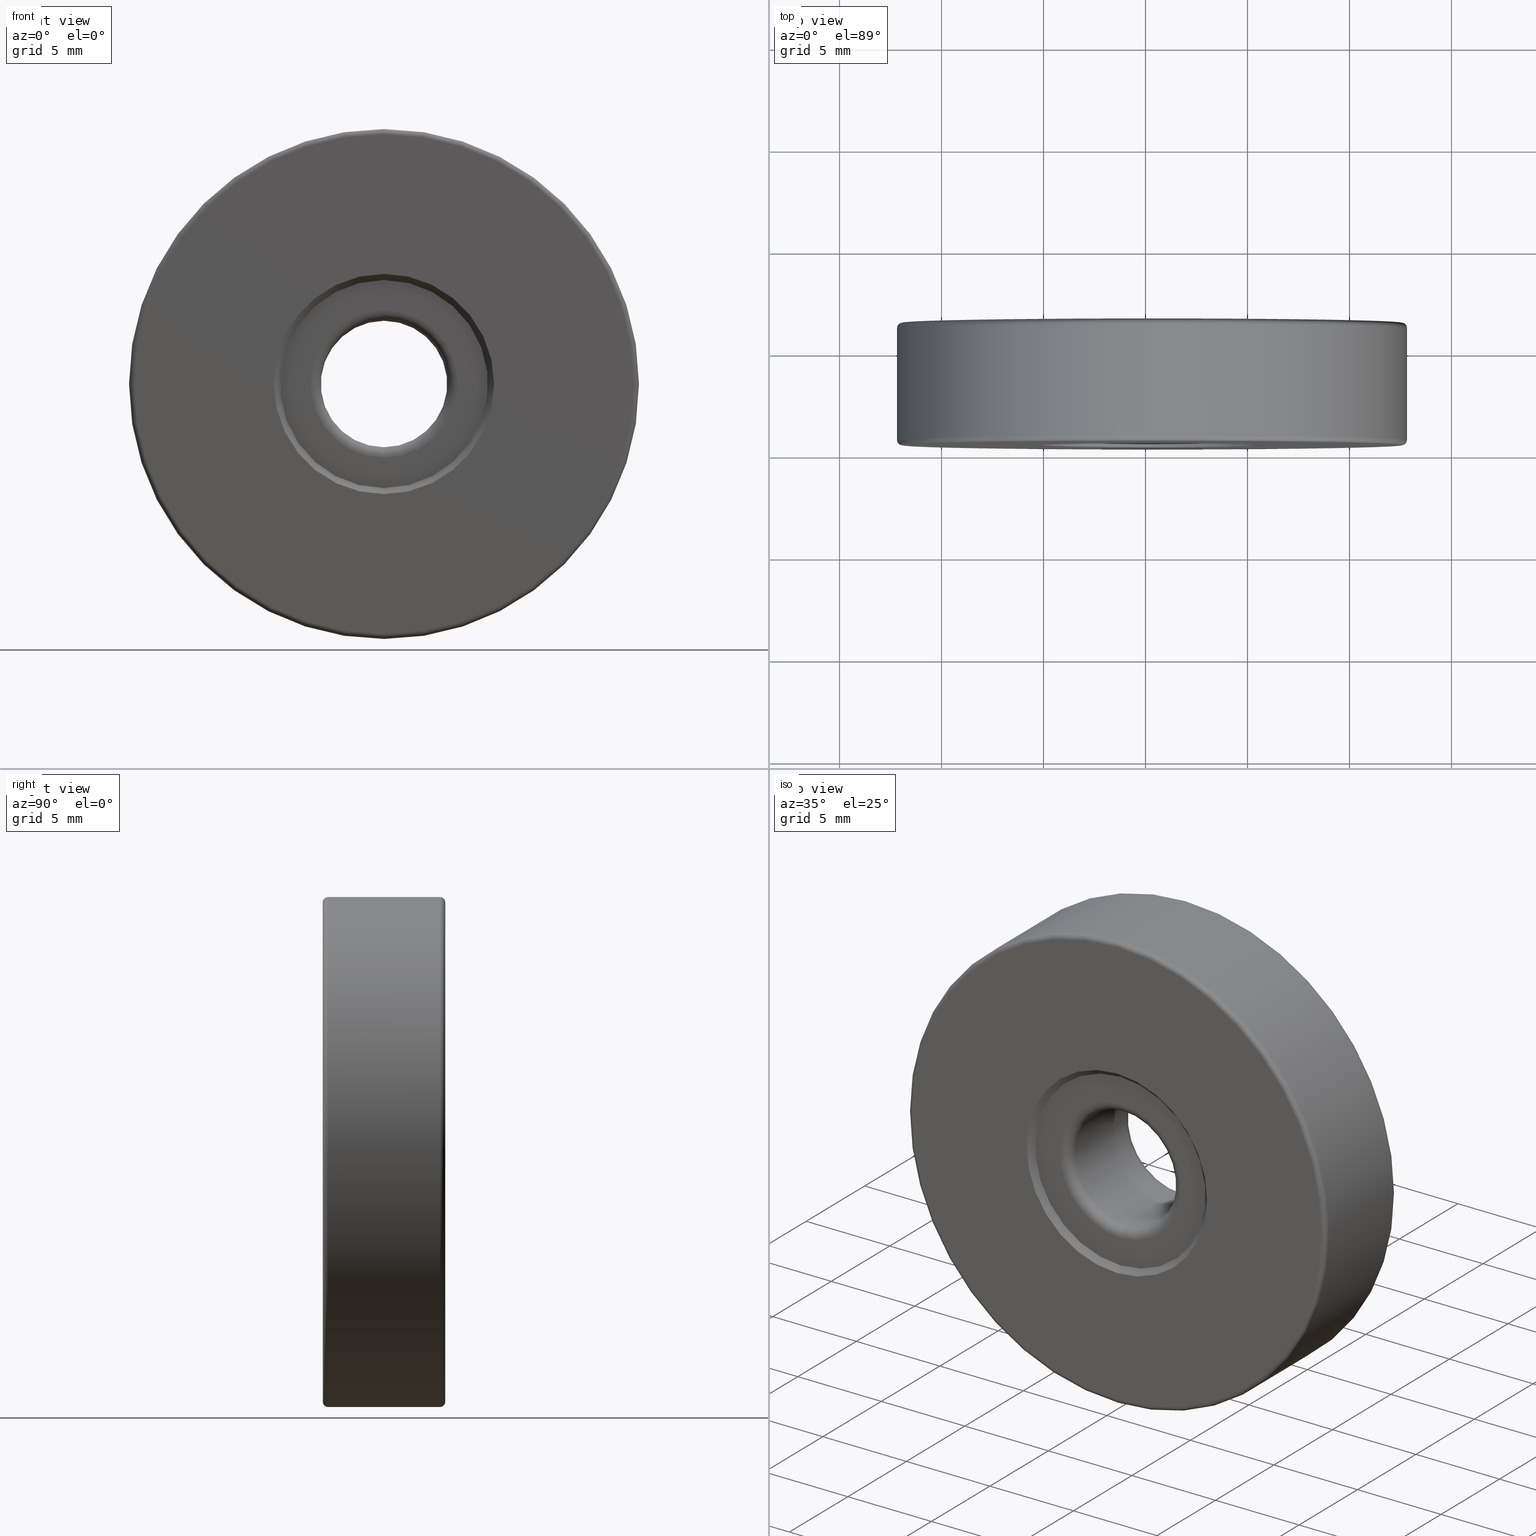
[diagram: canonical four-view strip — front | top / right | iso, engineering-drawing reading convention]
A machine part, canonical four-view strip (front | top / right | iso — engineering-drawing reading convention). The complete STEP part file that produces these views, byte-faithful:
ISO-10303-21;
HEADER;
FILE_DESCRIPTION (( 'STEP AP203' ),
    '1' );
FILE_NAME ('1.4.2.106_ZGH-25-DK6.STEP',
    '2022-04-15T03:00:36',
    ( '' ),
    ( '' ),
    'SwSTEP 2.0',
    'SolidWorks 2021',
    '' );
FILE_SCHEMA (( 'CONFIG_CONTROL_DESIGN' ));
ENDSEC;

DATA;
#1 = DIRECTION ( 'NONE',  ( 0.0000000000000000000, 1.000000000000000000, 0.0000000000000000000 ) ) ;
#2 = DIRECTION ( 'NONE',  ( -0.0000000000000000000, -1.000000000000000000, -0.0000000000000000000 ) ) ;
#3 = ADVANCED_FACE ( 'NONE', ( #86 ), #52, .T. ) ;
#4 = FACE_OUTER_BOUND ( 'NONE', #554, .T. ) ;
#5 = CIRCLE ( 'NONE', #537, 0.5000000000000004441 ) ;
#6 = CIRCLE ( 'NONE', #217, 0.2500000000000002220 ) ;
#7 = CARTESIAN_POINT ( 'NONE',  ( -4.682026255059964726, 1.105024023001728750, 25.00000000000000000 ) ) ;
#8 = DIRECTION ( 'NONE',  ( 0.0000000000000000000, 1.000000000000000000, 0.0000000000000000000 ) ) ;
#9 = DIRECTION ( 'NONE',  ( 8.659560562354895880E-17, -0.7071067811865506814, 0.7071067811865443531 ) ) ;
#10 = ORIENTED_EDGE ( 'NONE', *, *, #395, .F. ) ;
#11 = DIRECTION ( 'NONE',  ( -0.0000000000000000000, 1.000000000000000000, -0.0000000000000000000 ) ) ;
#12 = VERTEX_POINT ( 'NONE', #186 ) ;
#13 = DATE_AND_TIME ( #57, #340 ) ;
#14 = AXIS2_PLACEMENT_3D ( 'NONE', #481, #433, #151 ) ;
#15 = CARTESIAN_POINT ( 'NONE',  ( -4.682026255059964726, 1.105024023001728750, 25.00000000000000000 ) ) ;
#16 = EDGE_CURVE ( 'NONE', #273, #194, #245, .T. ) ;
#17 = APPLICATION_PROTOCOL_DEFINITION ( 'international standard', 'config_control_design', 1994, #251 ) ;
#18 = DIRECTION ( 'NONE',  ( 0.0000000000000000000, 1.000000000000000000, 0.0000000000000000000 ) ) ;
#19 = ORIENTED_EDGE ( 'NONE', *, *, #517, .T. ) ;
#20 = DIRECTION ( 'NONE',  ( -0.0000000000000000000, -1.000000000000000000, -0.0000000000000000000 ) ) ;
#21 = VERTEX_POINT ( 'NONE', #479 ) ;
#22 = DIRECTION ( 'NONE',  ( -0.0000000000000000000, -1.000000000000000000, -0.0000000000000000000 ) ) ;
#23 = CIRCLE ( 'NONE', #396, 12.50000000000000355 ) ;
#24 = VERTEX_POINT ( 'NONE', #240 ) ;
#25 = APPROVAL_PERSON_ORGANIZATION ( #466, #515, #599 ) ;
#26 = PERSON_AND_ORGANIZATION ( #73, #322 ) ;
#27 = FACE_OUTER_BOUND ( 'NONE', #504, .T. ) ;
#28 = ORIENTED_EDGE ( 'NONE', *, *, #333, .T. ) ;
#29 = CARTESIAN_POINT ( 'NONE',  ( -4.682026255059964726, 0.6050240230017248644, 25.00000000000000000 ) ) ;
#30 = EDGE_CURVE ( 'NONE', #267, #12, #42, .T. ) ;
#31 = ORIENTED_EDGE ( 'NONE', *, *, #614, .F. ) ;
#32 = DATE_AND_TIME ( #421, #290 ) ;
#33 = ORIENTED_EDGE ( 'NONE', *, *, #92, .T. ) ;
#34 = VECTOR ( 'NONE', #105, 1000.000000000000000 ) ;
#35 = CC_DESIGN_PERSON_AND_ORGANIZATION_ASSIGNMENT ( #124, #215, ( #403 ) ) ;
#36 = AXIS2_PLACEMENT_3D ( 'NONE', #60, #154, #116 ) ;
#37 = DIRECTION ( 'NONE',  ( 0.0000000000000000000, 1.000000000000000000, 0.0000000000000000000 ) ) ;
#38 = ORIENTED_EDGE ( 'NONE', *, *, #614, .T. ) ;
#39 = DIRECTION ( 'NONE',  ( -0.0000000000000000000, 1.000000000000000000, -0.0000000000000000000 ) ) ;
#40 = EDGE_CURVE ( 'NONE', #392, #603, #432, .T. ) ;
#41 = VERTEX_POINT ( 'NONE', #428 ) ;
#42 = CIRCLE ( 'NONE', #279, 12.50000000000000355 ) ;
#43 = AXIS2_PLACEMENT_3D ( 'NONE', #221, #362, #331 ) ;
#44 = LOCAL_TIME ( 11, 0, 36.00000000000000000, #548 ) ;
#45 = CARTESIAN_POINT ( 'NONE',  ( -4.682026255059964726, -4.594975976998274980, 25.00000000000000000 ) ) ;
#46 = ORIENTED_EDGE ( 'NONE', *, *, #30, .F. ) ;
#47 = CYLINDRICAL_SURFACE ( 'NONE', #88, 3.099999999999998757 ) ;
#48 = EDGE_CURVE ( 'NONE', #603, #392, #508, .T. ) ;
#49 = DIRECTION ( 'NONE',  ( 0.0000000000000000000, 0.0000000000000000000, -1.000000000000000000 ) ) ;
#50 = LINE ( 'NONE', #399, #229 ) ;
#51 = CARTESIAN_POINT ( 'NONE',  ( -4.682026255059962949, -4.294975976998275158, 28.60000000000000142 ) ) ;
#52 = TOROIDAL_SURFACE ( 'NONE', #328, 12.25000000000000000, 0.2500000000000000000 ) ;
#53 = CIRCLE ( 'NONE', #425, 5.399999999999998579 ) ;
#54 = CARTESIAN_POINT ( 'NONE',  ( -4.682026255059964726, -3.794975976998274714, 25.00000000000000000 ) ) ;
#55 = FACE_OUTER_BOUND ( 'NONE', #299, .T. ) ;
#56 = ORIENTED_EDGE ( 'NONE', *, *, #134, .F. ) ;
#57 = CALENDAR_DATE ( 2022, 15, 4 ) ;
#58 = ADVANCED_FACE ( 'NONE', ( #330 ), #166, .T. ) ;
#59 = PLANE ( 'NONE',  #570 ) ;
#60 = CARTESIAN_POINT ( 'NONE',  ( -4.682026255059964726, -3.794975976998274714, 21.40000000000000213 ) ) ;
#61 = CIRCLE ( 'NONE', #216, 3.599999999999999201 ) ;
#62 = AXIS2_PLACEMENT_3D ( 'NONE', #582, #148, #296 ) ;
#63 = CC_DESIGN_DATE_AND_TIME_ASSIGNMENT ( #32, #136, ( #512 ) ) ;
#64 = DIRECTION ( 'NONE',  ( 0.0000000000000000000, 0.0000000000000000000, -1.000000000000000000 ) ) ;
#65 = CC_DESIGN_APPROVAL ( #515, ( #512 ) ) ;
#66 = ORIENTED_EDGE ( 'NONE', *, *, #226, .F. ) ;
#67 = DIRECTION ( 'NONE',  ( 1.000000000000000000, 0.0000000000000000000, 0.0000000000000000000 ) ) ;
#68 = CARTESIAN_POINT ( 'NONE',  ( -4.682026255059963837, 1.105024023001728750, 19.90000000000000213 ) ) ;
#69 = VERTEX_POINT ( 'NONE', #617 ) ;
#70 = ADVANCED_FACE ( 'NONE', ( #431 ), #309, .T. ) ;
#71 = FACE_OUTER_BOUND ( 'NONE', #144, .T. ) ;
#72 = DIRECTION ( 'NONE',  ( 0.0000000000000000000, 1.000000000000000000, 0.0000000000000000000 ) ) ;
#73 = PERSON ( 'δָ��', 'δָ��', 'δָ��', ('δָ��'), ('δָ��'), ('δָ��') ) ;
#74 = ORIENTED_EDGE ( 'NONE', *, *, #558, .T. ) ;
#75 = DATE_AND_TIME ( #458, #408 ) ;
#76 = AXIS2_PLACEMENT_3D ( 'NONE', #15, #553, #218 ) ;
#77 = DIRECTION ( 'NONE',  ( 0.0000000000000000000, 0.0000000000000000000, 1.000000000000000000 ) ) ;
#78 = CIRCLE ( 'NONE', #563, 0.5000000000000004441 ) ;
#79 = CIRCLE ( 'NONE', #329, 3.099999999999998757 ) ;
#80 = ORIENTED_EDGE ( 'NONE', *, *, #48, .T. ) ;
#81 = DIRECTION ( 'NONE',  ( 0.0000000000000000000, 0.0000000000000000000, 1.000000000000000000 ) ) ;
#82 = ORIENTED_EDGE ( 'NONE', *, *, #333, .F. ) ;
#83 = APPROVAL_STATUS ( 'not_yet_approved' ) ;
#84 = EDGE_CURVE ( 'NONE', #397, #115, #455, .T. ) ;
#85 = ORIENTED_EDGE ( 'NONE', *, *, #84, .F. ) ;
#86 = FACE_OUTER_BOUND ( 'NONE', #535, .T. ) ;
#87 = AXIS2_PLACEMENT_3D ( 'NONE', #569, #469, #137 ) ;
#88 = AXIS2_PLACEMENT_3D ( 'NONE', #578, #241, #430 ) ;
#89 = PERSON_AND_ORGANIZATION_ROLE ( 'creator' ) ;
#90 = PRODUCT_DEFINITION_FORMATION_WITH_SPECIFIED_SOURCE ( '�κ�', '', #403, .NOT_KNOWN. ) ;
#91 = EDGE_LOOP ( 'NONE', ( #153, #320, #74, #565 ) ) ;
#92 = EDGE_CURVE ( 'NONE', #111, #267, #50, .T. ) ;
#93 = FACE_OUTER_BOUND ( 'NONE', #203, .T. ) ;
#94 = CARTESIAN_POINT ( 'NONE',  ( -4.682026255059964726, -4.594975976998274980, 25.00000000000000000 ) ) ;
#95 = CIRCLE ( 'NONE', #442, 0.2500000000000002220 ) ;
#96 = AXIS2_PLACEMENT_3D ( 'NONE', #101, #389, #143 ) ;
#97 = APPROVAL_PERSON_ORGANIZATION ( #417, #540, #228 ) ;
#98 = LINE ( 'NONE', #613, #580 ) ;
#99 = ADVANCED_FACE ( 'NONE', ( #435, #343 ), #59, .T. ) ;
#100 = ORIENTED_EDGE ( 'NONE', *, *, #522, .F. ) ;
#101 = CARTESIAN_POINT ( 'NONE',  ( -4.682026255059963837, -3.794975976998274714, 28.60000000000000142 ) ) ;
#102 = CC_DESIGN_PERSON_AND_ORGANIZATION_ASSIGNMENT ( #26, #183, ( #512 ) ) ;
#103 = CARTESIAN_POINT ( 'NONE',  ( -4.682026255059964726, 1.405024023001725242, 37.25000000000000711 ) ) ;
#104 = DIRECTION ( 'NONE',  ( -0.0000000000000000000, 1.000000000000000000, -0.0000000000000000000 ) ) ;
#105 = DIRECTION ( 'NONE',  ( 0.0000000000000000000, 0.7071067811865444641, 0.7071067811865505703 ) ) ;
#106 = ORIENTED_EDGE ( 'NONE', *, *, #226, .T. ) ;
#107 = DIRECTION ( 'NONE',  ( 0.0000000000000000000, -1.000000000000000000, 0.0000000000000000000 ) ) ;
#108 = VECTOR ( 'NONE', #9, 1000.000000000000114 ) ;
#109 = CIRCLE ( 'NONE', #43, 5.100000000000000533 ) ;
#110 = DIRECTION ( 'NONE',  ( 0.0000000000000000000, -0.0000000000000000000, 1.000000000000000000 ) ) ;
#111 = VERTEX_POINT ( 'NONE', #393 ) ;
#112 = EDGE_CURVE ( 'NONE', #338, #552, #61, .T. ) ;
#113 = CALENDAR_DATE ( 2022, 15, 4 ) ;
#114 = DIRECTION ( 'NONE',  ( 0.0000000000000000000, 0.0000000000000000000, 1.000000000000000000 ) ) ;
#115 = VERTEX_POINT ( 'NONE', #103 ) ;
#116 = DIRECTION ( 'NONE',  ( 0.0000000000000000000, 0.0000000000000000000, 1.000000000000000000 ) ) ;
#117 = CARTESIAN_POINT ( 'NONE',  ( -4.682026255059964726, -3.794975976998274714, 25.00000000000000000 ) ) ;
#118 = EDGE_LOOP ( 'NONE', ( #422, #561 ) ) ;
#119 = CARTESIAN_POINT ( 'NONE',  ( -4.682026255059964726, -4.594975976998274980, 19.60000000000000142 ) ) ;
#120 = VECTOR ( 'NONE', #39, 1000.000000000000000 ) ;
#121 = DIRECTION ( 'NONE',  ( -0.0000000000000000000, -1.000000000000000000, -0.0000000000000000000 ) ) ;
#122 = EDGE_CURVE ( 'NONE', #392, #267, #604, .T. ) ;
#123 = EDGE_LOOP ( 'NONE', ( #358, #420, #38, #46 ) ) ;
#124 = PERSON_AND_ORGANIZATION ( #73, #322 ) ;
#125 = DIRECTION ( 'NONE',  ( -0.0000000000000000000, -1.000000000000000000, -0.0000000000000000000 ) ) ;
#126 = ORIENTED_EDGE ( 'NONE', *, *, #401, .T. ) ;
#127 = DIRECTION ( 'NONE',  ( 0.0000000000000000000, 0.0000000000000000000, -1.000000000000000000 ) ) ;
#128 = DIRECTION ( 'NONE',  ( 0.0000000000000000000, 0.0000000000000000000, 1.000000000000000000 ) ) ;
#129 = EDGE_LOOP ( 'NONE', ( #568, #265 ) ) ;
#130 = VECTOR ( 'NONE', #542, 1000.000000000000000 ) ;
#131 = CARTESIAN_POINT ( 'NONE',  ( -4.682026255059964726, 1.155024023001725020, 37.25000000000000711 ) ) ;
#132 = AXIS2_PLACEMENT_3D ( 'NONE', #369, #377, #560 ) ;
#133 = ORIENTED_EDGE ( 'NONE', *, *, #277, .T. ) ;
#134 = EDGE_CURVE ( 'NONE', #404, #324, #354, .T. ) ;
#135 = ORIENTED_EDGE ( 'NONE', *, *, #40, .F. ) ;
#136 = DATE_TIME_ROLE ( 'classification_date' ) ;
#137 = DIRECTION ( 'NONE',  ( 0.0000000000000000000, 0.0000000000000000000, 1.000000000000000000 ) ) ;
#138 = TOROIDAL_SURFACE ( 'NONE', #520, 3.600000000000000089, 0.5000000000000000000 ) ;
#139 = AXIS2_PLACEMENT_3D ( 'NONE', #383, #104, #243 ) ;
#140 = CARTESIAN_POINT ( 'NONE',  ( -4.682026255059964726, 1.405024023001725242, 25.00000000000000000 ) ) ;
#141 = EDGE_LOOP ( 'NONE', ( #413, #457, #516, #426 ) ) ;
#142 = DIRECTION ( 'NONE',  ( -0.0000000000000000000, -1.000000000000000000, -0.0000000000000000000 ) ) ;
#143 = DIRECTION ( 'NONE',  ( 0.0000000000000000000, 0.0000000000000000000, -1.000000000000000000 ) ) ;
#144 = EDGE_LOOP ( 'NONE', ( #160, #100 ) ) ;
#145 = AXIS2_PLACEMENT_3D ( 'NONE', #252, #212, #359 ) ;
#146 = DIRECTION ( 'NONE',  ( 0.0000000000000000000, -0.0000000000000000000, 1.000000000000000000 ) ) ;
#147 = CARTESIAN_POINT ( 'NONE',  ( -4.682026255059964726, 1.105024023001725419, 25.00000000000000000 ) ) ;
#148 = DIRECTION ( 'NONE',  ( 0.0000000000000000000, 1.000000000000000000, 0.0000000000000000000 ) ) ;
#149 = DIRECTION ( 'NONE',  ( 1.000000000000000000, -0.0000000000000000000, 1.224646799147353207E-16 ) ) ;
#150 = DIRECTION ( 'NONE',  ( 0.0000000000000000000, 0.0000000000000000000, 1.000000000000000000 ) ) ;
#151 = DIRECTION ( 'NONE',  ( 0.0000000000000000000, 0.0000000000000000000, 1.000000000000000000 ) ) ;
#152 = ADVANCED_FACE ( 'NONE', ( #546 ), #387, .T. ) ;
#153 = ORIENTED_EDGE ( 'NONE', *, *, #385, .T. ) ;
#154 = DIRECTION ( 'NONE',  ( -1.000000000000000000, -0.0000000000000000000, -0.0000000000000000000 ) ) ;
#155 = AXIS2_PLACEMENT_3D ( 'NONE', #585, #142, #188 ) ;
#156 = DIRECTION ( 'NONE',  ( 0.0000000000000000000, 0.0000000000000000000, -1.000000000000000000 ) ) ;
#157 = ADVANCED_FACE ( 'NONE', ( #348 ), #351, .F. ) ;
#158 = CARTESIAN_POINT ( 'NONE',  ( -4.682026255059964726, -4.344975976998274980, 25.00000000000000000 ) ) ;
#159 = CARTESIAN_POINT ( 'NONE',  ( -4.682026255059964726, -4.294975976998275158, 25.00000000000000000 ) ) ;
#160 = ORIENTED_EDGE ( 'NONE', *, *, #352, .F. ) ;
#161 = CARTESIAN_POINT ( 'NONE',  ( -4.682026255059964726, -4.594975976998274980, 37.25000000000000711 ) ) ;
#162 = EDGE_CURVE ( 'NONE', #278, #608, #298, .T. ) ;
#163 = DIRECTION ( 'NONE',  ( 1.000000000000000000, -0.0000000000000000000, 1.224646799147353207E-16 ) ) ;
#164 = EDGE_LOOP ( 'NONE', ( #584, #19, #609, #316 ) ) ;
#165 = DIRECTION ( 'NONE',  ( 0.0000000000000000000, 0.0000000000000000000, 1.000000000000000000 ) ) ;
#166 = TOROIDAL_SURFACE ( 'NONE', #405, 3.600000000000000089, 0.5000000000000000000 ) ;
#167 = PRODUCT_RELATED_PRODUCT_CATEGORY ( 'detail', '', ( #403 ) ) ;
#168 = AXIS2_PLACEMENT_3D ( 'NONE', #190, #533, #480 ) ;
#169 = CYLINDRICAL_SURFACE ( 'NONE', #551, 12.50000000000000000 ) ;
#170 = ORIENTED_EDGE ( 'NONE', *, *, #522, .T. ) ;
#171 = DATE_AND_TIME ( #113, #44 ) ;
#172 = CARTESIAN_POINT ( 'NONE',  ( -4.682026255059963837, -4.594975976998274980, 30.39999999999999858 ) ) ;
#173 = ORIENTED_EDGE ( 'NONE', *, *, #162, .T. ) ;
#174 = SECURITY_CLASSIFICATION_LEVEL ( 'unclassified' ) ;
#175 = DIRECTION ( 'NONE',  ( 0.0000000000000000000, 0.0000000000000000000, 1.000000000000000000 ) ) ;
#176 = ORIENTED_EDGE ( 'NONE', *, *, #16, .T. ) ;
#177 = EDGE_CURVE ( 'NONE', #69, #367, #594, .T. ) ;
#178 = AXIS2_PLACEMENT_3D ( 'NONE', #581, #250, #586 ) ;
#179 = ORIENTED_EDGE ( 'NONE', *, *, #162, .F. ) ;
#180 = SHELL_BASED_SURFACE_MODEL ( 'NONE', ( #418 ) );
#181 = PRODUCT_DEFINITION ( 'δ֪', '', #90, #419 ) ;
#182 = EDGE_LOOP ( 'NONE', ( #223, #133, #10, #471 ) ) ;
#183 = PERSON_AND_ORGANIZATION_ROLE ( 'classification_officer' ) ;
#184 = DIRECTION ( 'NONE',  ( 0.0000000000000000000, 0.0000000000000000000, 1.000000000000000000 ) ) ;
#185 = ADVANCED_FACE ( 'NONE', ( #261 ), #187, .F. ) ;
#186 = CARTESIAN_POINT ( 'NONE',  ( -4.682026255059962949, -4.344975976998274980, 37.50000000000000711 ) ) ;
#187 = CONICAL_SURFACE ( 'NONE', #394, 5.100000000000000533, 0.7853981633974526089 ) ;
#188 = DIRECTION ( 'NONE',  ( 0.0000000000000000000, 0.0000000000000000000, -1.000000000000000000 ) ) ;
#189 = DIRECTION ( 'NONE',  ( 0.0000000000000000000, 0.0000000000000000000, 1.000000000000000000 ) ) ;
#190 = CARTESIAN_POINT ( 'NONE',  ( -4.682026255059964726, -4.294975976998275158, 25.00000000000000000 ) ) ;
#191 = UNCERTAINTY_MEASURE_WITH_UNIT (LENGTH_MEASURE( 1.000000000000000082E-05 ), #452, 'distance_accuracy_value', 'NONE');
#192 = EDGE_CURVE ( 'NONE', #194, #278, #207, .T. ) ;
#193 = CARTESIAN_POINT ( 'NONE',  ( -4.682026255059962949, 1.405024023001725242, 37.50000000000000711 ) ) ;
#194 = VERTEX_POINT ( 'NONE', #302 ) ;
#195 = AXIS2_PLACEMENT_3D ( 'NONE', #54, #202, #156 ) ;
#196 = AXIS2_PLACEMENT_3D ( 'NONE', #285, #293, #150 ) ;
#197 = CC_DESIGN_DATE_AND_TIME_ASSIGNMENT ( #13, #205, ( #181 ) ) ;
#198 = FACE_BOUND ( 'NONE', #374, .T. ) ;
#199 = DIRECTION ( 'NONE',  ( 0.0000000000000000000, 1.000000000000000000, 0.0000000000000000000 ) ) ;
#200 = DIRECTION ( 'NONE',  ( 0.0000000000000000000, 0.0000000000000000000, 1.000000000000000000 ) ) ;
#201 = DIRECTION ( 'NONE',  ( 0.0000000000000000000, 1.000000000000000000, 0.0000000000000000000 ) ) ;
#202 = DIRECTION ( 'NONE',  ( 0.0000000000000000000, -1.000000000000000000, 0.0000000000000000000 ) ) ;
#203 = EDGE_LOOP ( 'NONE', ( #56, #170, #327, #465 ) ) ;
#204 = CIRCLE ( 'NONE', #562, 12.25000000000000355 ) ;
#205 = DATE_TIME_ROLE ( 'creation_date' ) ;
#206 = CONICAL_SURFACE ( 'NONE', #155, 5.399999999999998579, 0.7853981633974439491 ) ;
#207 = LINE ( 'NONE', #538, #130 ) ;
#208 = ADVANCED_FACE ( 'NONE', ( #55 ), #138, .T. ) ;
#209 = PERSON_AND_ORGANIZATION ( #73, #322 ) ;
#210 = DIRECTION ( 'NONE',  ( 0.0000000000000000000, 0.0000000000000000000, 1.000000000000000000 ) ) ;
#211 = CC_DESIGN_PERSON_AND_ORGANIZATION_ASSIGNMENT ( #566, #89, ( #90 ) ) ;
#212 = DIRECTION ( 'NONE',  ( 0.0000000000000000000, -1.000000000000000000, 0.0000000000000000000 ) ) ;
#213 = FACE_OUTER_BOUND ( 'NONE', #227, .T. ) ;
#214 = ORIENTED_EDGE ( 'NONE', *, *, #295, .F. ) ;
#215 = PERSON_AND_ORGANIZATION_ROLE ( 'design_owner' ) ;
#216 = AXIS2_PLACEMENT_3D ( 'NONE', #159, #11, #589 ) ;
#217 = AXIS2_PLACEMENT_3D ( 'NONE', #398, #314, #127 ) ;
#218 = DIRECTION ( 'NONE',  ( 0.0000000000000000000, 0.0000000000000000000, 1.000000000000000000 ) ) ;
#219 = LOCAL_TIME ( 11, 0, 36.00000000000000000, #368 ) ;
#220 = ORIENTED_EDGE ( 'NONE', *, *, #295, .T. ) ;
#221 = CARTESIAN_POINT ( 'NONE',  ( -4.682026255059964726, -4.294975976998275158, 25.00000000000000000 ) ) ;
#222 = EDGE_CURVE ( 'NONE', #530, #444, #612, .T. ) ;
#223 = ORIENTED_EDGE ( 'NONE', *, *, #222, .F. ) ;
#224 = DATE_AND_TIME ( #505, #219 ) ;
#225 = DIRECTION ( 'NONE',  ( 0.0000000000000000000, 1.000000000000000000, 0.0000000000000000000 ) ) ;
#226 = EDGE_CURVE ( 'NONE', #69, #24, #345, .T. ) ;
#227 = EDGE_LOOP ( 'NONE', ( #410, #494, #590, #214 ) ) ;
#228 = APPROVAL_ROLE ( '' ) ;
#229 = VECTOR ( 'NONE', #491, 1000.000000000000000 ) ;
#230 = CIRCLE ( 'NONE', #139, 5.100000000000000533 ) ;
#231 = ORIENTED_EDGE ( 'NONE', *, *, #363, .T. ) ;
#232 = ADVANCED_FACE ( 'NONE', ( #256 ), #372, .F. ) ;
#233 = ORIENTED_EDGE ( 'NONE', *, *, #448, .F. ) ;
#234 = DIRECTION ( 'NONE',  ( 0.0000000000000000000, 1.000000000000000000, 0.0000000000000000000 ) ) ;
#235 = AXIS2_PLACEMENT_3D ( 'NONE', #294, #149, #64 ) ;
#236 = ORIENTED_EDGE ( 'NONE', *, *, #192, .T. ) ;
#237 = TOROIDAL_SURFACE ( 'NONE', #487, 12.25000000000000000, 0.2500000000000000000 ) ;
#238 = FACE_OUTER_BOUND ( 'NONE', #375, .T. ) ;
#239 = ADVANCED_FACE ( 'NONE', ( #93 ), #337, .F. ) ;
#240 = CARTESIAN_POINT ( 'NONE',  ( -4.682026255059964726, 1.405024023001725242, 30.39999999999999858 ) ) ;
#241 = DIRECTION ( 'NONE',  ( -0.0000000000000000000, 1.000000000000000000, -0.0000000000000000000 ) ) ;
#242 = DIRECTION ( 'NONE',  ( 0.0000000000000000000, 0.0000000000000000000, 1.000000000000000000 ) ) ;
#243 = DIRECTION ( 'NONE',  ( 0.0000000000000000000, 0.0000000000000000000, 1.000000000000000000 ) ) ;
#244 = CARTESIAN_POINT ( 'NONE',  ( -4.682026255059963837, -4.594975976998274980, 30.39999999999999858 ) ) ;
#245 = CIRCLE ( 'NONE', #579, 3.099999999999998757 ) ;
#246 = ORIENTED_EDGE ( 'NONE', *, *, #40, .T. ) ;
#247 = AXIS2_PLACEMENT_3D ( 'NONE', #472, #225, #128 ) ;
#248 = EDGE_CURVE ( 'NONE', #24, #41, #467, .T. ) ;
#249 = CARTESIAN_POINT ( 'NONE',  ( -4.682026255059964726, 1.155024023001725020, 25.00000000000000000 ) ) ;
#250 = DIRECTION ( 'NONE',  ( 0.0000000000000000000, 1.000000000000000000, 0.0000000000000000000 ) ) ;
#251 = APPLICATION_CONTEXT ( 'configuration controlled 3d designs of mechanical parts and assemblies' ) ;
#252 = CARTESIAN_POINT ( 'NONE',  ( -4.682026255059964726, -4.294975976998275158, 25.00000000000000000 ) ) ;
#253 = DIRECTION ( 'NONE',  ( 0.0000000000000000000, 0.0000000000000000000, 1.000000000000000000 ) ) ;
#254 = ORIENTED_EDGE ( 'NONE', *, *, #567, .T. ) ;
#255 = APPROVAL_DATE_TIME ( #171, #464 ) ;
#256 = FACE_OUTER_BOUND ( 'NONE', #346, .T. ) ;
#257 = ORIENTED_EDGE ( 'NONE', *, *, #395, .T. ) ;
#258 =( NAMED_UNIT ( * ) SI_UNIT ( $, .STERADIAN. ) SOLID_ANGLE_UNIT ( ) );
#259 = CIRCLE ( 'NONE', #424, 0.2500000000000002220 ) ;
#260 = CC_DESIGN_SECURITY_CLASSIFICATION ( #512, ( #90 ) ) ;
#261 = FACE_OUTER_BOUND ( 'NONE', #415, .T. ) ;
#262 = CC_DESIGN_PERSON_AND_ORGANIZATION_ASSIGNMENT ( #411, #268, ( #90 ) ) ;
#263 = DIRECTION ( 'NONE',  ( 0.0000000000000000000, 0.0000000000000000000, 1.000000000000000000 ) ) ;
#264 = DIRECTION ( 'NONE',  ( 0.0000000000000000000, 0.0000000000000000000, 1.000000000000000000 ) ) ;
#265 = ORIENTED_EDGE ( 'NONE', *, *, #489, .T. ) ;
#266 = CARTESIAN_POINT ( 'NONE',  ( -4.682026255059964726, 1.155024023001725020, 25.00000000000000000 ) ) ;
#267 = VERTEX_POINT ( 'NONE', #409 ) ;
#268 = PERSON_AND_ORGANIZATION_ROLE ( 'design_supplier' ) ;
#269 = EDGE_CURVE ( 'NONE', #324, #573, #378, .T. ) ;
#270 = VECTOR ( 'NONE', #503, 1000.000000000000000 ) ;
#271 = TOROIDAL_SURFACE ( 'NONE', #247, 12.25000000000000000, 0.2500000000000000000 ) ;
#272 = CARTESIAN_POINT ( 'NONE',  ( -4.682026255059964726, -4.294975976998275158, 21.40000000000000213 ) ) ;
#273 = VERTEX_POINT ( 'NONE', #593 ) ;
#274 = CARTESIAN_POINT ( 'NONE',  ( -4.682026255059962949, -4.594975976998274980, 12.75000000000000178 ) ) ;
#275 = ORIENTED_EDGE ( 'NONE', *, *, #511, .T. ) ;
#276 = APPROVAL_DATE_TIME ( #75, #540 ) ;
#277 = EDGE_CURVE ( 'NONE', #530, #278, #5, .T. ) ;
#278 = VERTEX_POINT ( 'NONE', #500 ) ;
#279 = AXIS2_PLACEMENT_3D ( 'NONE', #281, #476, #473 ) ;
#280 = AXIS2_PLACEMENT_3D ( 'NONE', #434, #8, #390 ) ;
#281 = CARTESIAN_POINT ( 'NONE',  ( -4.682026255059964726, -4.344975976998274980, 25.00000000000000000 ) ) ;
#282 = CARTESIAN_POINT ( 'NONE',  ( -4.682026255059964726, 0.6050240230017248644, 25.00000000000000000 ) ) ;
#283 = CARTESIAN_POINT ( 'NONE',  ( -4.682026255059964726, -4.594975976998274980, 28.10000000000000142 ) ) ;
#284 = ORIENTED_EDGE ( 'NONE', *, *, #478, .T. ) ;
#285 = CARTESIAN_POINT ( 'NONE',  ( -4.682026255059964726, 1.105024023001725419, 25.00000000000000000 ) ) ;
#286 = EDGE_CURVE ( 'NONE', #367, #41, #312, .T. ) ;
#287 = AXIS2_PLACEMENT_3D ( 'NONE', #453, #125, #597 ) ;
#288 = ORIENTED_EDGE ( 'NONE', *, *, #478, .F. ) ;
#289 = AXIS2_PLACEMENT_3D ( 'NONE', #506, #20, #175 ) ;
#290 = LOCAL_TIME ( 11, 0, 36.00000000000000000, #606 ) ;
#291 = DIRECTION ( 'NONE',  ( -0.0000000000000000000, -1.000000000000000000, -0.0000000000000000000 ) ) ;
#292 = EDGE_CURVE ( 'NONE', #115, #397, #204, .T. ) ;
#293 = DIRECTION ( 'NONE',  ( 0.0000000000000000000, 1.000000000000000000, 0.0000000000000000000 ) ) ;
#294 = CARTESIAN_POINT ( 'NONE',  ( -4.682026255059962949, -4.344975976998274980, 12.75000000000000178 ) ) ;
#295 = EDGE_CURVE ( 'NONE', #21, #115, #95, .T. ) ;
#296 = DIRECTION ( 'NONE',  ( 0.0000000000000000000, -0.0000000000000000000, 1.000000000000000000 ) ) ;
#297 = DIRECTION ( 'NONE',  ( 0.0000000000000000000, -1.000000000000000000, 0.0000000000000000000 ) ) ;
#298 = CIRCLE ( 'NONE', #497, 3.099999999999998757 ) ;
#299 = EDGE_LOOP ( 'NONE', ( #454, #82, #275, #179 ) ) ;
#300 = CIRCLE ( 'NONE', #36, 0.5000000000000004441 ) ;
#301 = DIRECTION ( 'NONE',  ( 0.0000000000000000000, 0.0000000000000000000, -1.000000000000000000 ) ) ;
#302 = CARTESIAN_POINT ( 'NONE',  ( -4.682026255059964726, -3.794975976998274714, 21.90000000000000213 ) ) ;
#303 = ORIENTED_EDGE ( 'NONE', *, *, #192, .F. ) ;
#304 = PERSON_AND_ORGANIZATION_ROLE ( 'creator' ) ;
#305 = CARTESIAN_POINT ( 'NONE',  ( -4.682026255059964726, -4.594975976998274980, 25.00000000000000000 ) ) ;
#306 = ORIENTED_EDGE ( 'NONE', *, *, #380, .F. ) ;
#307 = DIRECTION ( 'NONE',  ( 0.0000000000000000000, 0.0000000000000000000, -1.000000000000000000 ) ) ;
#308 = ORIENTED_EDGE ( 'NONE', *, *, #177, .F. ) ;
#309 = TOROIDAL_SURFACE ( 'NONE', #195, 3.600000000000000089, 0.5000000000000000000 ) ;
#310 = DIRECTION ( 'NONE',  ( 0.0000000000000000000, 1.000000000000000000, 0.0000000000000000000 ) ) ;
#311 = AXIS2_PLACEMENT_3D ( 'NONE', #536, #107, #301 ) ;
#312 = LINE ( 'NONE', #68, #270 ) ;
#313 = ORIENTED_EDGE ( 'NONE', *, *, #286, .F. ) ;
#314 = DIRECTION ( 'NONE',  ( 1.000000000000000000, -0.0000000000000000000, 1.224646799147353207E-16 ) ) ;
#315 = DIRECTION ( 'NONE',  ( 0.0000000000000000000, 0.0000000000000000000, 1.000000000000000000 ) ) ;
#316 = ORIENTED_EDGE ( 'NONE', *, *, #575, .F. ) ;
#317 = DIRECTION ( 'NONE',  ( -1.000000000000000000, 0.0000000000000000000, 0.0000000000000000000 ) ) ;
#318 = APPLICATION_CONTEXT ( 'configuration controlled 3d designs of mechanical parts and assemblies' ) ;
#319 = DIRECTION ( 'NONE',  ( -0.0000000000000000000, -1.000000000000000000, -0.0000000000000000000 ) ) ;
#320 = ORIENTED_EDGE ( 'NONE', *, *, #448, .T. ) ;
#321 = AXIS2_PLACEMENT_3D ( 'NONE', #366, #22, #264 ) ;
#322 = ORGANIZATION ( 'δָ��', 'δָ��', '' ) ;
#323 = DIRECTION ( 'NONE',  ( -0.0000000000000000000, -1.000000000000000000, -0.0000000000000000000 ) ) ;
#324 = VERTEX_POINT ( 'NONE', #172 ) ;
#325 = ADVANCED_FACE ( 'NONE', ( #27 ), #169, .T. ) ;
#326 = EDGE_LOOP ( 'NONE', ( #303, #254, #126, #257 ) ) ;
#327 = ORIENTED_EDGE ( 'NONE', *, *, #416, .T. ) ;
#328 = AXIS2_PLACEMENT_3D ( 'NONE', #610, #615, #189 ) ;
#329 = AXIS2_PLACEMENT_3D ( 'NONE', #29, #602, #184 ) ;
#330 = FACE_OUTER_BOUND ( 'NONE', #182, .T. ) ;
#331 = DIRECTION ( 'NONE',  ( 0.0000000000000000000, 0.0000000000000000000, 1.000000000000000000 ) ) ;
#332 = ORIENTED_EDGE ( 'NONE', *, *, #583, .F. ) ;
#333 = EDGE_CURVE ( 'NONE', #444, #530, #611, .T. ) ;
#334 = FACE_OUTER_BOUND ( 'NONE', #91, .T. ) ;
#335 = DIRECTION ( 'NONE',  ( 0.0000000000000000000, 0.0000000000000000000, 1.000000000000000000 ) ) ;
#336 = DIRECTION ( 'NONE',  ( 0.0000000000000000000, 0.0000000000000000000, 1.000000000000000000 ) ) ;
#337 = CONICAL_SURFACE ( 'NONE', #287, 5.399999999999998579, 0.7853981633974439491 ) ;
#338 = VERTEX_POINT ( 'NONE', #272 ) ;
#339 = CIRCLE ( 'NONE', #311, 3.099999999999998757 ) ;
#340 = LOCAL_TIME ( 11, 0, 36.00000000000000000, #492 ) ;
#341 = DIRECTION ( 'NONE',  ( -1.000000000000000000, 0.0000000000000000000, 0.0000000000000000000 ) ) ;
#342 = ADVANCED_FACE ( 'NONE', ( #213 ), #271, .T. ) ;
#343 = FACE_OUTER_BOUND ( 'NONE', #440, .T. ) ;
#344 = DIRECTION ( 'NONE',  ( -0.0000000000000000000, -1.000000000000000000, -0.0000000000000000000 ) ) ;
#345 = LINE ( 'NONE', #534, #34 ) ;
#346 = EDGE_LOOP ( 'NONE', ( #288, #577, #447, #66 ) ) ;
#347 = CARTESIAN_POINT ( 'NONE',  ( -4.682026255059963837, 1.105024023001725197, 21.40000000000000213 ) ) ;
#348 = FACE_OUTER_BOUND ( 'NONE', #364, .T. ) ;
#349 = AXIS2_PLACEMENT_3D ( 'NONE', #305, #486, #114 ) ;
#350 = AXIS2_PLACEMENT_3D ( 'NONE', #365, #165, #67 ) ;
#351 = CYLINDRICAL_SURFACE ( 'NONE', #349, 3.099999999999998757 ) ;
#352 = EDGE_CURVE ( 'NONE', #596, #404, #109, .T. ) ;
#353 = CARTESIAN_POINT ( 'NONE',  ( -4.682026255059964726, -4.344975976998274980, 37.25000000000000711 ) ) ;
#354 = LINE ( 'NONE', #244, #108 ) ;
#355 = ORIENTED_EDGE ( 'NONE', *, *, #134, .T. ) ;
#356 = APPROVAL_STATUS ( 'not_yet_approved' ) ;
#357 = CARTESIAN_POINT ( 'NONE',  ( -4.682026255059963837, 0.6050240230017248644, 21.40000000000000213 ) ) ;
#358 = ORIENTED_EDGE ( 'NONE', *, *, #122, .F. ) ;
#359 = DIRECTION ( 'NONE',  ( 0.0000000000000000000, 0.0000000000000000000, 1.000000000000000000 ) ) ;
#360 = TOROIDAL_SURFACE ( 'NONE', #379, 12.25000000000000000, 0.2500000000000000000 ) ;
#361 = CC_DESIGN_APPROVAL ( #464, ( #181 ) ) ;
#362 = DIRECTION ( 'NONE',  ( -0.0000000000000000000, 1.000000000000000000, -0.0000000000000000000 ) ) ;
#363 = EDGE_CURVE ( 'NONE', #21, #111, #23, .T. ) ;
#364 = EDGE_LOOP ( 'NONE', ( #176, #236, #173, #388 ) ) ;
#365 = CARTESIAN_POINT ( 'NONE',  ( 0.0000000000000000000, 0.0000000000000000000, 0.0000000000000000000 ) ) ;
#366 = CARTESIAN_POINT ( 'NONE',  ( -4.682026255059964726, 1.405024023001725242, 25.00000000000000000 ) ) ;
#367 = VERTEX_POINT ( 'NONE', #460 ) ;
#368 = COORDINATED_UNIVERSAL_TIME_OFFSET ( 8, 0, .AHEAD. ) ;
#369 = CARTESIAN_POINT ( 'NONE',  ( -4.682026255059964726, 1.405024023001725242, 25.00000000000000000 ) ) ;
#370 = ORIENTED_EDGE ( 'NONE', *, *, #416, .F. ) ;
#371 = COORDINATED_UNIVERSAL_TIME_OFFSET ( 8, 0, .AHEAD. ) ;
#372 = CONICAL_SURFACE ( 'NONE', #76, 5.100000000000000533, 0.7853981633974526089 ) ;
#373 = VECTOR ( 'NONE', #291, 1000.000000000000000 ) ;
#374 = EDGE_LOOP ( 'NONE', ( #514, #601 ) ) ;
#375 = EDGE_LOOP ( 'NONE', ( #332, #483, #220, #85 ) ) ;
#376 = CARTESIAN_POINT ( 'NONE',  ( -4.682026255059964726, -4.594975976998274980, 25.00000000000000000 ) ) ;
#377 = DIRECTION ( 'NONE',  ( -0.0000000000000000000, -1.000000000000000000, -0.0000000000000000000 ) ) ;
#378 = CIRCLE ( 'NONE', #550, 5.399999999999998579 ) ;
#379 = AXIS2_PLACEMENT_3D ( 'NONE', #158, #310, #263 ) ;
#380 = EDGE_CURVE ( 'NONE', #41, #24, #475, .T. ) ;
#381 = FACE_OUTER_BOUND ( 'NONE', #507, .T. ) ;
#382 = CARTESIAN_POINT ( 'NONE',  ( -4.682026255059964726, -3.794975976998274714, 25.00000000000000000 ) ) ;
#383 = CARTESIAN_POINT ( 'NONE',  ( -4.682026255059964726, -4.294975976998275158, 25.00000000000000000 ) ) ;
#384 = EDGE_LOOP ( 'NONE', ( #28, #501 ) ) ;
#385 = EDGE_CURVE ( 'NONE', #111, #21, #605, .T. ) ;
#386 = CARTESIAN_POINT ( 'NONE',  ( -4.682026255059964726, 1.105024023001725197, 28.60000000000000142 ) ) ;
#387 = TOROIDAL_SURFACE ( 'NONE', #588, 3.600000000000000089, 0.5000000000000000000 ) ;
#388 = ORIENTED_EDGE ( 'NONE', *, *, #401, .F. ) ;
#389 = DIRECTION ( 'NONE',  ( 1.000000000000000000, 0.0000000000000000000, -1.224646799147353207E-16 ) ) ;
#390 = DIRECTION ( 'NONE',  ( 0.0000000000000000000, 0.0000000000000000000, 1.000000000000000000 ) ) ;
#391 = DIRECTION ( 'NONE',  ( 0.0000000000000000000, 0.0000000000000000000, 1.000000000000000000 ) ) ;
#392 = VERTEX_POINT ( 'NONE', #274 ) ;
#393 = CARTESIAN_POINT ( 'NONE',  ( -4.682026255059962949, 1.155024023001725020, 12.50000000000000000 ) ) ;
#394 = AXIS2_PLACEMENT_3D ( 'NONE', #7, #199, #441 ) ;
#395 = EDGE_CURVE ( 'NONE', #608, #278, #79, .T. ) ;
#396 = AXIS2_PLACEMENT_3D ( 'NONE', #266, #319, #77 ) ;
#397 = VERTEX_POINT ( 'NONE', #572 ) ;
#398 = CARTESIAN_POINT ( 'NONE',  ( -4.682026255059962949, 1.155024023001725020, 12.75000000000000178 ) ) ;
#399 = CARTESIAN_POINT ( 'NONE',  ( -4.682026255059964726, 1.405024023001725242, 12.50000000000000000 ) ) ;
#400 = CARTESIAN_POINT ( 'NONE',  ( -4.682026255059963837, -4.294975976998275158, 30.10000000000000142 ) ) ;
#401 = EDGE_CURVE ( 'NONE', #273, #608, #523, .T. ) ;
#402 = DIRECTION ( 'NONE',  ( 0.0000000000000000000, 0.0000000000000000000, 1.000000000000000000 ) ) ;
#403 = PRODUCT ( '1.4.2.106_ZGH-25-DK6', '1.4.2.106_ZGH-25-DK6', '', ( #555 ) ) ;
#404 = VERTEX_POINT ( 'NONE', #400 ) ;
#405 = AXIS2_PLACEMENT_3D ( 'NONE', #282, #37, #242 ) ;
#406 = PERSON_AND_ORGANIZATION ( #73, #322 ) ;
#407 = CIRCLE ( 'NONE', #96, 0.5000000000000004441 ) ;
#408 = LOCAL_TIME ( 11, 0, 36.00000000000000000, #371 ) ;
#409 = CARTESIAN_POINT ( 'NONE',  ( -4.682026255059964726, -4.344975976998274980, 12.50000000000000000 ) ) ;
#410 = ORIENTED_EDGE ( 'NONE', *, *, #385, .F. ) ;
#411 = PERSON_AND_ORGANIZATION ( #73, #322 ) ;
#412 = DIRECTION ( 'NONE',  ( -1.000000000000000000, 0.0000000000000000000, 0.0000000000000000000 ) ) ;
#413 = ORIENTED_EDGE ( 'NONE', *, *, #517, .F. ) ;
#414 = CARTESIAN_POINT ( 'NONE',  ( -4.682026255059964726, -4.594975976998274980, 25.00000000000000000 ) ) ;
#415 = EDGE_LOOP ( 'NONE', ( #313, #308, #106, #306 ) ) ;
#416 = EDGE_CURVE ( 'NONE', #596, #573, #98, .T. ) ;
#417 = PERSON_AND_ORGANIZATION ( #73, #322 ) ;
#418 = OPEN_SHELL ( 'NONE', ( #157, #70, #438, #3, #461, #342, #232, #58, #208, #99, #185, #545, #528, #325, #607, #496, #239, #591, #152, #470 ) ) ;
#419 = DESIGN_CONTEXT ( 'detailed design', #318, 'design' ) ;
#420 = ORIENTED_EDGE ( 'NONE', *, *, #48, .F. ) ;
#421 = CALENDAR_DATE ( 2022, 15, 4 ) ;
#422 = ORIENTED_EDGE ( 'NONE', *, *, #429, .T. ) ;
#423 = DIRECTION ( 'NONE',  ( 0.0000000000000000000, -0.7071067811865506814, -0.7071067811865443531 ) ) ;
#424 = AXIS2_PLACEMENT_3D ( 'NONE', #353, #317, #449 ) ;
#425 = AXIS2_PLACEMENT_3D ( 'NONE', #94, #1, #200 ) ;
#426 = ORIENTED_EDGE ( 'NONE', *, *, #16, .F. ) ;
#427 = DIRECTION ( 'NONE',  ( 0.0000000000000000000, 1.000000000000000000, 0.0000000000000000000 ) ) ;
#428 = CARTESIAN_POINT ( 'NONE',  ( -4.682026255059963837, 1.405024023001725242, 19.60000000000000142 ) ) ;
#429 = EDGE_CURVE ( 'NONE', #573, #324, #53, .T. ) ;
#430 = DIRECTION ( 'NONE',  ( 0.0000000000000000000, 0.0000000000000000000, 1.000000000000000000 ) ) ;
#431 = FACE_OUTER_BOUND ( 'NONE', #164, .T. ) ;
#432 = CIRCLE ( 'NONE', #527, 12.25000000000000355 ) ;
#433 = DIRECTION ( 'NONE',  ( 0.0000000000000000000, 1.000000000000000000, 0.0000000000000000000 ) ) ;
#434 = CARTESIAN_POINT ( 'NONE',  ( -4.682026255059964726, -4.344975976998274980, 25.00000000000000000 ) ) ;
#435 = FACE_BOUND ( 'NONE', #384, .T. ) ;
#436 = ORIENTED_EDGE ( 'NONE', *, *, #84, .T. ) ;
#437 = FACE_BOUND ( 'NONE', #129, .T. ) ;
#438 = ADVANCED_FACE ( 'NONE', ( #490 ), #206, .F. ) ;
#439 = DIRECTION ( 'NONE',  ( -0.0000000000000000000, -1.000000000000000000, -0.0000000000000000000 ) ) ;
#440 = EDGE_LOOP ( 'NONE', ( #462, #284 ) ) ;
#441 = DIRECTION ( 'NONE',  ( 0.0000000000000000000, 0.0000000000000000000, 1.000000000000000000 ) ) ;
#442 = AXIS2_PLACEMENT_3D ( 'NONE', #131, #412, #402 ) ;
#443 = APPROVAL_PERSON_ORGANIZATION ( #209, #464, #541 ) ;
#444 = VERTEX_POINT ( 'NONE', #386 ) ;
#445 =( NAMED_UNIT ( * ) PLANE_ANGLE_UNIT ( ) SI_UNIT ( $, .RADIAN. ) );
#446 = CARTESIAN_POINT ( 'NONE',  ( -4.682026255059964726, 0.6050240230017248644, 25.00000000000000000 ) ) ;
#447 = ORIENTED_EDGE ( 'NONE', *, *, #248, .F. ) ;
#448 = EDGE_CURVE ( 'NONE', #21, #12, #576, .T. ) ;
#449 = DIRECTION ( 'NONE',  ( 0.0000000000000000000, 0.0000000000000000000, 1.000000000000000000 ) ) ;
#450 = DIRECTION ( 'NONE',  ( 0.0000000000000000000, 1.000000000000000000, 0.0000000000000000000 ) ) ;
#451 = ORIENTED_EDGE ( 'NONE', *, *, #292, .T. ) ;
#452 =( LENGTH_UNIT ( ) NAMED_UNIT ( * ) SI_UNIT ( .MILLI., .METRE. ) );
#453 = CARTESIAN_POINT ( 'NONE',  ( -4.682026255059964726, -4.594975976998274980, 25.00000000000000000 ) ) ;
#454 = ORIENTED_EDGE ( 'NONE', *, *, #277, .F. ) ;
#455 = CIRCLE ( 'NONE', #178, 12.25000000000000355 ) ;
#456 = DIRECTION ( 'NONE',  ( 0.0000000000000000000, 0.0000000000000000000, -1.000000000000000000 ) ) ;
#457 = ORIENTED_EDGE ( 'NONE', *, *, #112, .F. ) ;
#458 = CALENDAR_DATE ( 2022, 15, 4 ) ;
#459 = PRODUCT_DEFINITION_SHAPE ( 'NONE', 'NONE',  #181 ) ;
#460 = CARTESIAN_POINT ( 'NONE',  ( -4.682026255059963837, 1.105024023001725419, 19.90000000000000213 ) ) ;
#461 = ADVANCED_FACE ( 'NONE', ( #334 ), #477, .T. ) ;
#462 = ORIENTED_EDGE ( 'NONE', *, *, #177, .T. ) ;
#463 = APPROVAL_DATE_TIME ( #224, #515 ) ;
#464 = APPROVAL ( #356, 'δָ��' ) ;
#465 = ORIENTED_EDGE ( 'NONE', *, *, #269, .F. ) ;
#466 = PERSON_AND_ORGANIZATION ( #73, #322 ) ;
#467 = CIRCLE ( 'NONE', #321, 5.399999999999998579 ) ;
#468 = AXIS2_PLACEMENT_3D ( 'NONE', #526, #344, #49 ) ;
#469 = DIRECTION ( 'NONE',  ( -0.0000000000000000000, -1.000000000000000000, -0.0000000000000000000 ) ) ;
#470 = ADVANCED_FACE ( 'NONE', ( #616 ), #47, .F. ) ;
#471 = ORIENTED_EDGE ( 'NONE', *, *, #511, .F. ) ;
#472 = CARTESIAN_POINT ( 'NONE',  ( -4.682026255059964726, 1.155024023001725020, 25.00000000000000000 ) ) ;
#473 = DIRECTION ( 'NONE',  ( 0.0000000000000000000, 0.0000000000000000000, 1.000000000000000000 ) ) ;
#474 = PLANE ( 'NONE',  #571 ) ;
#475 = CIRCLE ( 'NONE', #132, 5.399999999999998579 ) ;
#476 = DIRECTION ( 'NONE',  ( 0.0000000000000000000, 1.000000000000000000, 0.0000000000000000000 ) ) ;
#477 = CYLINDRICAL_SURFACE ( 'NONE', #468, 12.50000000000000000 ) ;
#478 = EDGE_CURVE ( 'NONE', #367, #69, #509, .T. ) ;
#479 = CARTESIAN_POINT ( 'NONE',  ( -4.682026255059964726, 1.155024023001725020, 37.50000000000000711 ) ) ;
#480 = DIRECTION ( 'NONE',  ( 0.0000000000000000000, 0.0000000000000000000, -1.000000000000000000 ) ) ;
#481 = CARTESIAN_POINT ( 'NONE',  ( -4.682026255059964726, 1.105024023001725419, 25.00000000000000000 ) ) ;
#482 = MANIFOLD_SURFACE_SHAPE_REPRESENTATION ( '1.4.2.106_ZGH-25-DK6', ( #180, #350 ), #539 ) ;
#483 = ORIENTED_EDGE ( 'NONE', *, *, #363, .F. ) ;
#484 = PLANE ( 'NONE',  #62 ) ;
#485 = AXIS2_PLACEMENT_3D ( 'NONE', #493, #439, #210 ) ;
#486 = DIRECTION ( 'NONE',  ( -0.0000000000000000000, 1.000000000000000000, -0.0000000000000000000 ) ) ;
#487 = AXIS2_PLACEMENT_3D ( 'NONE', #249, #427, #336 ) ;
#488 = ORIENTED_EDGE ( 'NONE', *, *, #558, .F. ) ;
#489 = EDGE_CURVE ( 'NONE', #552, #338, #498, .T. ) ;
#490 = FACE_OUTER_BOUND ( 'NONE', #598, .T. ) ;
#491 = DIRECTION ( 'NONE',  ( -0.0000000000000000000, -1.000000000000000000, -0.0000000000000000000 ) ) ;
#492 = COORDINATED_UNIVERSAL_TIME_OFFSET ( 8, 0, .AHEAD. ) ;
#493 = CARTESIAN_POINT ( 'NONE',  ( -4.682026255059964726, 1.105024023001725419, 25.00000000000000000 ) ) ;
#494 = ORIENTED_EDGE ( 'NONE', *, *, #583, .T. ) ;
#495 = CARTESIAN_POINT ( 'NONE',  ( -4.682026255059964726, 0.6050240230017248644, 25.00000000000000000 ) ) ;
#496 = ADVANCED_FACE ( 'NONE', ( #381, #525 ), #474, .F. ) ;
#497 = AXIS2_PLACEMENT_3D ( 'NONE', #495, #201, #391 ) ;
#498 = CIRCLE ( 'NONE', #168, 3.599999999999999201 ) ;
#499 = CARTESIAN_POINT ( 'NONE',  ( -4.682026255059964726, 0.6050240230017248644, 28.10000000000000142 ) ) ;
#500 = CARTESIAN_POINT ( 'NONE',  ( -4.682026255059964726, 0.6050240230017248644, 21.90000000000000213 ) ) ;
#501 = ORIENTED_EDGE ( 'NONE', *, *, #222, .T. ) ;
#502 = FACE_OUTER_BOUND ( 'NONE', #123, .T. ) ;
#503 = DIRECTION ( 'NONE',  ( 8.659560562354969836E-17, 0.7071067811865444641, -0.7071067811865505703 ) ) ;
#504 = EDGE_LOOP ( 'NONE', ( #233, #231, #33, #547 ) ) ;
#505 = CALENDAR_DATE ( 2022, 15, 4 ) ;
#506 = CARTESIAN_POINT ( 'NONE',  ( -4.682026255059964726, 1.105024023001725419, 25.00000000000000000 ) ) ;
#507 = EDGE_LOOP ( 'NONE', ( #80, #246 ) ) ;
#508 = CIRCLE ( 'NONE', #87, 12.25000000000000355 ) ;
#509 = CIRCLE ( 'NONE', #196, 5.100000000000000533 ) ;
#510 = CC_DESIGN_APPROVAL ( #540, ( #90 ) ) ;
#511 = EDGE_CURVE ( 'NONE', #444, #608, #78, .T. ) ;
#512 = SECURITY_CLASSIFICATION ( '', '', #174 ) ;
#513 = CARTESIAN_POINT ( 'NONE',  ( -4.682026255059964726, 1.155024023001725020, 25.00000000000000000 ) ) ;
#514 = ORIENTED_EDGE ( 'NONE', *, *, #248, .T. ) ;
#515 = APPROVAL ( #519, 'δָ��' ) ;
#516 = ORIENTED_EDGE ( 'NONE', *, *, #575, .T. ) ;
#517 = EDGE_CURVE ( 'NONE', #552, #273, #407, .T. ) ;
#518 = DIRECTION ( 'NONE',  ( 0.0000000000000000000, 0.0000000000000000000, -1.000000000000000000 ) ) ;
#519 = APPROVAL_STATUS ( 'not_yet_approved' ) ;
#520 = AXIS2_PLACEMENT_3D ( 'NONE', #446, #18, #253 ) ;
#521 = ORIENTED_EDGE ( 'NONE', *, *, #122, .T. ) ;
#522 = EDGE_CURVE ( 'NONE', #404, #596, #230, .T. ) ;
#523 = LINE ( 'NONE', #283, #120 ) ;
#524 = DIRECTION ( 'NONE',  ( 0.0000000000000000000, -1.000000000000000000, 0.0000000000000000000 ) ) ;
#525 = FACE_BOUND ( 'NONE', #118, .T. ) ;
#526 = CARTESIAN_POINT ( 'NONE',  ( -4.682026255059964726, 1.405024023001725242, 25.00000000000000000 ) ) ;
#527 = AXIS2_PLACEMENT_3D ( 'NONE', #376, #2, #335 ) ;
#528 = ADVANCED_FACE ( 'NONE', ( #238 ), #237, .T. ) ;
#529 = CIRCLE ( 'NONE', #280, 12.50000000000000355 ) ;
#530 = VERTEX_POINT ( 'NONE', #347 ) ;
#531 = DIRECTION ( 'NONE',  ( 0.0000000000000000000, 0.0000000000000000000, 1.000000000000000000 ) ) ;
#532 = DIRECTION ( 'NONE',  ( 0.0000000000000000000, 1.000000000000000000, 0.0000000000000000000 ) ) ;
#533 = DIRECTION ( 'NONE',  ( -0.0000000000000000000, 1.000000000000000000, -0.0000000000000000000 ) ) ;
#534 = CARTESIAN_POINT ( 'NONE',  ( -4.682026255059964726, 1.105024023001728750, 30.10000000000000142 ) ) ;
#535 = EDGE_LOOP ( 'NONE', ( #135, #521, #488, #31 ) ) ;
#536 = CARTESIAN_POINT ( 'NONE',  ( -4.682026255059964726, -3.794975976998274714, 25.00000000000000000 ) ) ;
#537 = AXIS2_PLACEMENT_3D ( 'NONE', #357, #163, #600 ) ;
#538 = CARTESIAN_POINT ( 'NONE',  ( -4.682026255059964726, -4.594975976998274980, 21.90000000000000213 ) ) ;
#539 =( GEOMETRIC_REPRESENTATION_CONTEXT ( 3 ) GLOBAL_UNCERTAINTY_ASSIGNED_CONTEXT ( ( #191 ) ) GLOBAL_UNIT_ASSIGNED_CONTEXT ( ( #452, #445, #258 ) ) REPRESENTATION_CONTEXT ( 'NONE', 'WORKASPACE' ) );
#540 = APPROVAL ( #83, 'δָ��' ) ;
#541 = APPROVAL_ROLE ( '' ) ;
#542 = DIRECTION ( 'NONE',  ( -0.0000000000000000000, 1.000000000000000000, -0.0000000000000000000 ) ) ;
#543 = ORIENTED_EDGE ( 'NONE', *, *, #429, .F. ) ;
#544 = CARTESIAN_POINT ( 'NONE',  ( -4.682026255059964726, -4.294975976998275158, 19.90000000000000213 ) ) ;
#545 = ADVANCED_FACE ( 'NONE', ( #4, #198 ), #484, .T. ) ;
#546 = FACE_OUTER_BOUND ( 'NONE', #141, .T. ) ;
#547 = ORIENTED_EDGE ( 'NONE', *, *, #30, .T. ) ;
#548 = COORDINATED_UNIVERSAL_TIME_OFFSET ( 8, 0, .AHEAD. ) ;
#549 = DIRECTION ( 'NONE',  ( 0.0000000000000000000, 0.0000000000000000000, 1.000000000000000000 ) ) ;
#550 = AXIS2_PLACEMENT_3D ( 'NONE', #414, #72, #315 ) ;
#551 = AXIS2_PLACEMENT_3D ( 'NONE', #556, #121, #456 ) ;
#552 = VERTEX_POINT ( 'NONE', #51 ) ;
#553 = DIRECTION ( 'NONE',  ( 0.0000000000000000000, 1.000000000000000000, 0.0000000000000000000 ) ) ;
#554 = EDGE_LOOP ( 'NONE', ( #451, #436 ) ) ;
#555 = MECHANICAL_CONTEXT ( 'NONE', #251, 'mechanical' ) ;
#556 = CARTESIAN_POINT ( 'NONE',  ( -4.682026255059964726, 1.405024023001725242, 25.00000000000000000 ) ) ;
#557 = ORIENTED_EDGE ( 'NONE', *, *, #352, .T. ) ;
#558 = EDGE_CURVE ( 'NONE', #12, #267, #529, .T. ) ;
#559 = SHAPE_DEFINITION_REPRESENTATION ( #459, #482 ) ;
#560 = DIRECTION ( 'NONE',  ( 0.0000000000000000000, 0.0000000000000000000, 1.000000000000000000 ) ) ;
#561 = ORIENTED_EDGE ( 'NONE', *, *, #269, .T. ) ;
#562 = AXIS2_PLACEMENT_3D ( 'NONE', #140, #450, #549 ) ;
#563 = AXIS2_PLACEMENT_3D ( 'NONE', #574, #341, #531 ) ;
#564 = CC_DESIGN_PERSON_AND_ORGANIZATION_ASSIGNMENT ( #406, #304, ( #181 ) ) ;
#565 = ORIENTED_EDGE ( 'NONE', *, *, #92, .F. ) ;
#566 = PERSON_AND_ORGANIZATION ( #73, #322 ) ;
#567 = EDGE_CURVE ( 'NONE', #194, #273, #339, .T. ) ;
#568 = ORIENTED_EDGE ( 'NONE', *, *, #112, .T. ) ;
#569 = CARTESIAN_POINT ( 'NONE',  ( -4.682026255059964726, -4.594975976998274980, 25.00000000000000000 ) ) ;
#570 = AXIS2_PLACEMENT_3D ( 'NONE', #147, #532, #110 ) ;
#571 = AXIS2_PLACEMENT_3D ( 'NONE', #45, #234, #146 ) ;
#572 = CARTESIAN_POINT ( 'NONE',  ( -4.682026255059962949, 1.405024023001725242, 12.75000000000000178 ) ) ;
#573 = VERTEX_POINT ( 'NONE', #119 ) ;
#574 = CARTESIAN_POINT ( 'NONE',  ( -4.682026255059964726, 0.6050240230017248644, 28.60000000000000142 ) ) ;
#575 = EDGE_CURVE ( 'NONE', #338, #194, #300, .T. ) ;
#576 = LINE ( 'NONE', #193, #373 ) ;
#577 = ORIENTED_EDGE ( 'NONE', *, *, #286, .T. ) ;
#578 = CARTESIAN_POINT ( 'NONE',  ( -4.682026255059964726, -4.594975976998274980, 25.00000000000000000 ) ) ;
#579 = AXIS2_PLACEMENT_3D ( 'NONE', #382, #524, #518 ) ;
#580 = VECTOR ( 'NONE', #423, 1000.000000000000114 ) ;
#581 = CARTESIAN_POINT ( 'NONE',  ( -4.682026255059964726, 1.405024023001725242, 25.00000000000000000 ) ) ;
#582 = CARTESIAN_POINT ( 'NONE',  ( -4.682026255059964726, 1.405024023001725242, 25.00000000000000000 ) ) ;
#583 = EDGE_CURVE ( 'NONE', #111, #397, #6, .T. ) ;
#584 = ORIENTED_EDGE ( 'NONE', *, *, #489, .F. ) ;
#585 = CARTESIAN_POINT ( 'NONE',  ( -4.682026255059964726, -4.594975976998274980, 25.00000000000000000 ) ) ;
#586 = DIRECTION ( 'NONE',  ( 0.0000000000000000000, 0.0000000000000000000, 1.000000000000000000 ) ) ;
#587 = APPLICATION_PROTOCOL_DEFINITION ( 'international standard', 'config_control_design', 1994, #318 ) ;
#588 = AXIS2_PLACEMENT_3D ( 'NONE', #117, #297, #307 ) ;
#589 = DIRECTION ( 'NONE',  ( 0.0000000000000000000, 0.0000000000000000000, -1.000000000000000000 ) ) ;
#590 = ORIENTED_EDGE ( 'NONE', *, *, #292, .F. ) ;
#591 = ADVANCED_FACE ( 'NONE', ( #437, #71 ), #592, .T. ) ;
#592 = PLANE ( 'NONE',  #145 ) ;
#593 = CARTESIAN_POINT ( 'NONE',  ( -4.682026255059964726, -3.794975976998274714, 28.10000000000000142 ) ) ;
#594 = CIRCLE ( 'NONE', #14, 5.100000000000000533 ) ;
#595 = AXIS2_PLACEMENT_3D ( 'NONE', #513, #323, #81 ) ;
#596 = VERTEX_POINT ( 'NONE', #544 ) ;
#597 = DIRECTION ( 'NONE',  ( 0.0000000000000000000, 0.0000000000000000000, -1.000000000000000000 ) ) ;
#598 = EDGE_LOOP ( 'NONE', ( #557, #355, #543, #370 ) ) ;
#599 = APPROVAL_ROLE ( '' ) ;
#600 = DIRECTION ( 'NONE',  ( 0.0000000000000000000, 0.0000000000000000000, -1.000000000000000000 ) ) ;
#601 = ORIENTED_EDGE ( 'NONE', *, *, #380, .T. ) ;
#602 = DIRECTION ( 'NONE',  ( 0.0000000000000000000, 1.000000000000000000, 0.0000000000000000000 ) ) ;
#603 = VERTEX_POINT ( 'NONE', #161 ) ;
#604 = CIRCLE ( 'NONE', #235, 0.2500000000000002220 ) ;
#605 = CIRCLE ( 'NONE', #595, 12.50000000000000355 ) ;
#606 = COORDINATED_UNIVERSAL_TIME_OFFSET ( 8, 0, .AHEAD. ) ;
#607 = ADVANCED_FACE ( 'NONE', ( #502 ), #360, .T. ) ;
#608 = VERTEX_POINT ( 'NONE', #499 ) ;
#609 = ORIENTED_EDGE ( 'NONE', *, *, #567, .F. ) ;
#610 = CARTESIAN_POINT ( 'NONE',  ( -4.682026255059964726, -4.344975976998274980, 25.00000000000000000 ) ) ;
#611 = CIRCLE ( 'NONE', #289, 3.599999999999999201 ) ;
#612 = CIRCLE ( 'NONE', #485, 3.599999999999999201 ) ;
#613 = CARTESIAN_POINT ( 'NONE',  ( -4.682026255059964726, -4.594975976998274980, 19.60000000000000142 ) ) ;
#614 = EDGE_CURVE ( 'NONE', #603, #12, #259, .T. ) ;
#615 = DIRECTION ( 'NONE',  ( 0.0000000000000000000, 1.000000000000000000, 0.0000000000000000000 ) ) ;
#616 = FACE_OUTER_BOUND ( 'NONE', #326, .T. ) ;
#617 = CARTESIAN_POINT ( 'NONE',  ( -4.682026255059964726, 1.105024023001725419, 30.10000000000000142 ) ) ;
ENDSEC;
END-ISO-10303-21;
